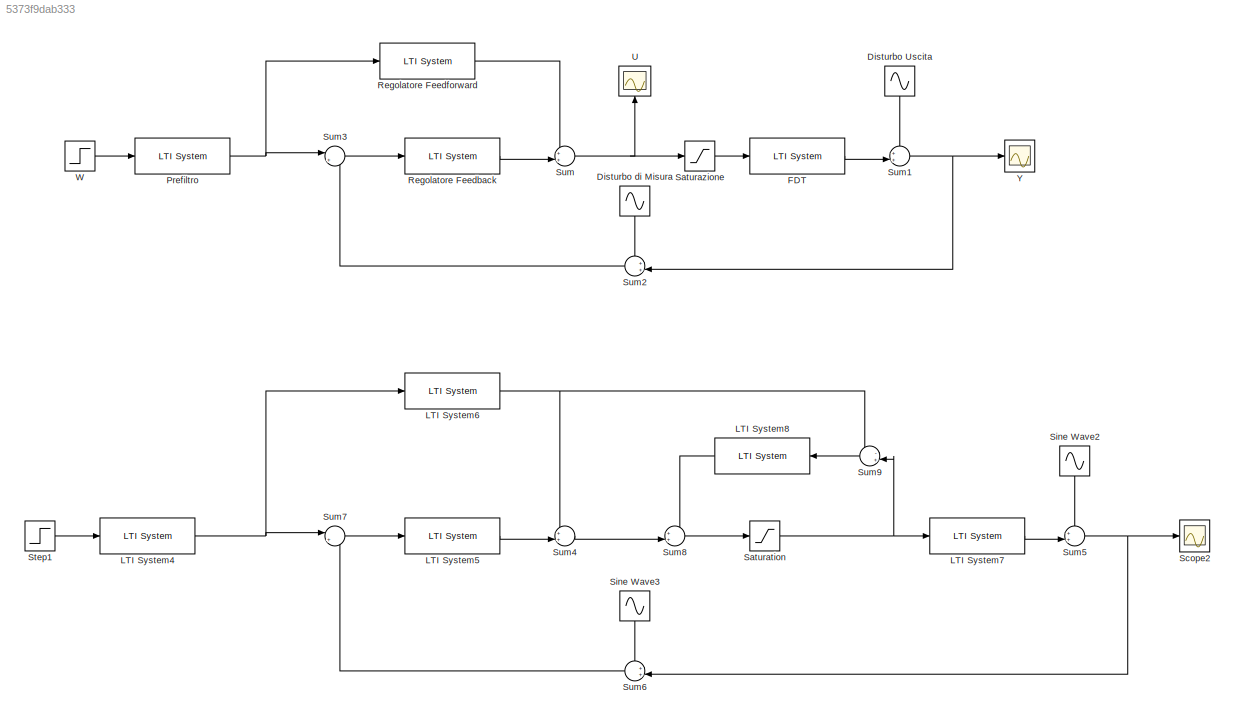
MODEL slx_5373f9dab333
KIND model
CONFIG AbsTol = auto
CONFIG EnableMultiTasking = off
CONFIG FixedStep = auto
CONFIG MaxStep = auto
CONFIG MinStep = auto
CONFIG RelTol = 1e-3
CONFIG SampleTimeConstraint = Unconstrained
CONFIG Solver = VariableStepAuto
CONFIG SolverName = VariableStepAuto
CONFIG StartTime = 0.0
CONFIG StopTime = 10
BLOCK [Sin] Disturbo Uscita
  Amplitude = 0.3
  Frequency = 0.08
  Ports = [0, 1]
  SampleTime = 0
BLOCK [Sin] Disturbo di Misura
  Amplitude = 0.02
  Frequency = 100
  Ports = [0, 1]
  SampleTime = 0
BLOCK [Reference] FDT  REF=cstblocks/LTI System
  Ports = [1, 1]
  SourceBlock = cstblocks/LTI System
  SourceType = LTI Block
BLOCK [Reference] LTI System4  REF=cstblocks/LTI System
  Ports = [1, 1]
  SourceBlock = cstblocks/LTI System
  SourceType = LTI Block
BLOCK [Reference] LTI System5  REF=cstblocks/LTI System
  Ports = [1, 1]
  SourceBlock = cstblocks/LTI System
  SourceType = LTI Block
BLOCK [Reference] LTI System6  REF=cstblocks/LTI System
  Ports = [1, 1]
  SourceBlock = cstblocks/LTI System
  SourceType = LTI Block
BLOCK [Reference] LTI System7  REF=cstblocks/LTI System
  Ports = [1, 1]
  SourceBlock = cstblocks/LTI System
  SourceType = LTI Block
BLOCK [Reference] LTI System8  REF=cstblocks/LTI System
  Ports = [1, 1]
  SourceBlock = cstblocks/LTI System
  SourceType = LTI Block
BLOCK [Reference] Prefiltro  REF=cstblocks/LTI System
  Ports = [1, 1]
  SourceBlock = cstblocks/LTI System
  SourceType = LTI Block
BLOCK [Reference] Regolatore Feedback  REF=cstblocks/LTI System
  Ports = [1, 1]
  SourceBlock = cstblocks/LTI System
  SourceType = LTI Block
BLOCK [Reference] Regolatore Feedforward  REF=cstblocks/LTI System
  Ports = [1, 1]
  SourceBlock = cstblocks/LTI System
  SourceType = LTI Block
BLOCK [Saturate] Saturation
  InputPortMap = u0
  LowerLimit = -28.5
  Ports = [1, 1]
  UpperLimit = 28.5
BLOCK [Saturate] Saturazione
  InputPortMap = u0
  LowerLimit = -24
  Ports = [1, 1]
  UpperLimit = 24
BLOCK [Scope] Scope2
  NumInputPorts = 1
  Ports = [1]
  ScopeSpecificationString = Simulink.scopes.TimeScopeBlockCfg('CurrentConfiguration', extmgr.ConfigurationSet(extmgr.Configuration('Core','General UI',true),extmgr.Configuration('Core','Source UI',true),extmgr.Configuration('Sources','WiredSimulink',true,'DataLoggingVariableName','ScopeData2'),extmgr.Configuration('Visuals','Time Domain',true,'SerializedDisplays',{struct('MinYLimReal','-0.26555','MaxYLimReal','2.38995','YLab...<+1462ch>
BLOCK [Sin] Sine Wave2
  Amplitude = 0.3
  Frequency = 0.08
  Ports = [0, 1]
  SampleTime = 0
BLOCK [Sin] Sine Wave3
  Amplitude = 0.02
  Frequency = 100
  Ports = [0, 1]
  SampleTime = 0
BLOCK [Step] Step1
  After = 2
  SampleTime = 0
  Time = 0
BLOCK [Sum] Sum
  IconShape = round
  InputSameDT = off
  Inputs = ++|
  OutDataTypeStr = Inherit: Inherit via internal rule
  Ports = [2, 1]
  SaturateOnIntegerOverflow = off
BLOCK [Sum] Sum1
  IconShape = round
  InputSameDT = off
  Inputs = ++|
  OutDataTypeStr = Inherit: Inherit via internal rule
  Ports = [2, 1]
  SaturateOnIntegerOverflow = off
BLOCK [Sum] Sum2
  IconShape = round
  InputSameDT = off
  Inputs = ++|
  OutDataTypeStr = Inherit: Inherit via internal rule
  Ports = [2, 1]
  SaturateOnIntegerOverflow = off
BLOCK [Sum] Sum3
  IconShape = round
  InputSameDT = off
  Inputs = |+-
  OutDataTypeStr = Inherit: Inherit via internal rule
  Ports = [2, 1]
  SaturateOnIntegerOverflow = off
BLOCK [Sum] Sum4
  IconShape = round
  InputSameDT = off
  Inputs = ++|
  OutDataTypeStr = Inherit: Inherit via internal rule
  Ports = [2, 1]
  SaturateOnIntegerOverflow = off
BLOCK [Sum] Sum5
  IconShape = round
  InputSameDT = off
  Inputs = ++|
  OutDataTypeStr = Inherit: Inherit via internal rule
  Ports = [2, 1]
  SaturateOnIntegerOverflow = off
BLOCK [Sum] Sum6
  IconShape = round
  InputSameDT = off
  Inputs = ++|
  OutDataTypeStr = Inherit: Inherit via internal rule
  Ports = [2, 1]
  SaturateOnIntegerOverflow = off
BLOCK [Sum] Sum7
  IconShape = round
  InputSameDT = off
  Inputs = |+-
  OutDataTypeStr = Inherit: Inherit via internal rule
  Ports = [2, 1]
  SaturateOnIntegerOverflow = off
BLOCK [Sum] Sum8
  IconShape = round
  InputSameDT = off
  Inputs = ++|
  OutDataTypeStr = Inherit: Inherit via internal rule
  Ports = [2, 1]
  SaturateOnIntegerOverflow = off
BLOCK [Sum] Sum9
  IconShape = round
  InputSameDT = off
  Inputs = -+|
  OutDataTypeStr = Inherit: Inherit via internal rule
  Ports = [2, 1]
  SaturateOnIntegerOverflow = off
BLOCK [Scope] U
  NumInputPorts = 1
  Ports = [1]
  ScopeSpecificationString = Simulink.scopes.TimeScopeBlockCfg('CurrentConfiguration', extmgr.ConfigurationSet(extmgr.Configuration('Core','General UI',true),extmgr.Configuration('Core','Source UI',true),extmgr.Configuration('Sources','WiredSimulink',true,'DataLoggingVariableName','ScopeData1'),extmgr.Configuration('Visuals','Time Domain',true,'SerializedDisplays',{struct('MinYLimReal','-4.44236','MaxYLimReal','39.9812','YLab...<+1461ch>
BLOCK [Step] W
  After = 2
  SampleTime = 0
  Time = 0
BLOCK [Scope] Y
  NumInputPorts = 1
  Ports = [1]
  ScopeSpecificationString = Simulink.scopes.TimeScopeBlockCfg('CurrentConfiguration', extmgr.ConfigurationSet(extmgr.Configuration('Core','General UI',true),extmgr.Configuration('Core','Source UI',true),extmgr.Configuration('Sources','WiredSimulink',true),extmgr.Configuration('Visuals','Time Domain',true,'SerializedDisplays',{struct('MinYLimReal','-0.25514','MaxYLimReal','2.2963','YLabelReal','','MinYLimMag','0.00000','MaxYL...<+1708ch>
LINE Disturbo Uscita:1 -> Sum1:1
LINE Disturbo di Misura:1 -> Sum2:1
LINE FDT:1 -> Sum1:2
NET LTI System4:1 -> LTI System6:1, Sum7:1
LINE LTI System5:1 -> Sum4:2
NET LTI System6:1 -> Sum4:1, Sum9:1
LINE LTI System7:1 -> Sum5:2
LINE LTI System8:1 -> Sum8:1
NET Prefiltro:1 -> Regolatore Feedforward:1, Sum3:1
LINE Regolatore Feedback:1 -> Sum:2
LINE Regolatore Feedforward:1 -> Sum:1
NET Saturation:1 -> LTI System7:1, Sum9:2
LINE Saturazione:1 -> FDT:1
LINE Sine Wave2:1 -> Sum5:1
LINE Sine Wave3:1 -> Sum6:1
LINE Step1:1 -> LTI System4:1
NET Sum1:1 -> Sum2:2, Y:1
LINE Sum2:1 -> Sum3:2
LINE Sum3:1 -> Regolatore Feedback:1
LINE Sum4:1 -> Sum8:2
NET Sum5:1 -> Scope2:1, Sum6:2
LINE Sum6:1 -> Sum7:2
LINE Sum7:1 -> LTI System5:1
LINE Sum8:1 -> Saturation:1
LINE Sum9:1 -> LTI System8:1
NET Sum:1 -> Saturazione:1, U:1
LINE W:1 -> Prefiltro:1
note: NET lines group one-source signal fan-out (src -> all destinations, sorted); 1:1 wires keep LINE
